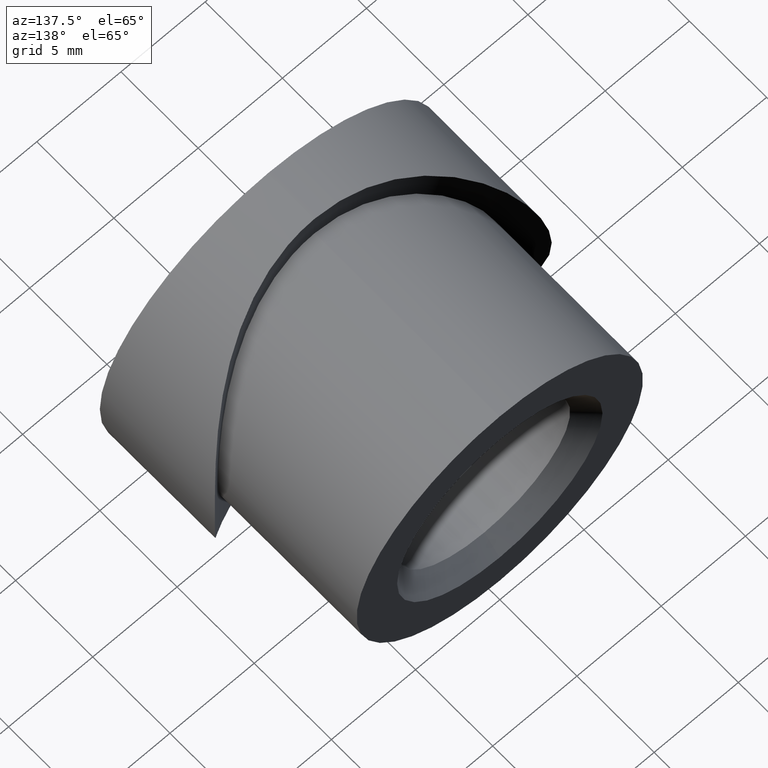
[diagram: clean part render]
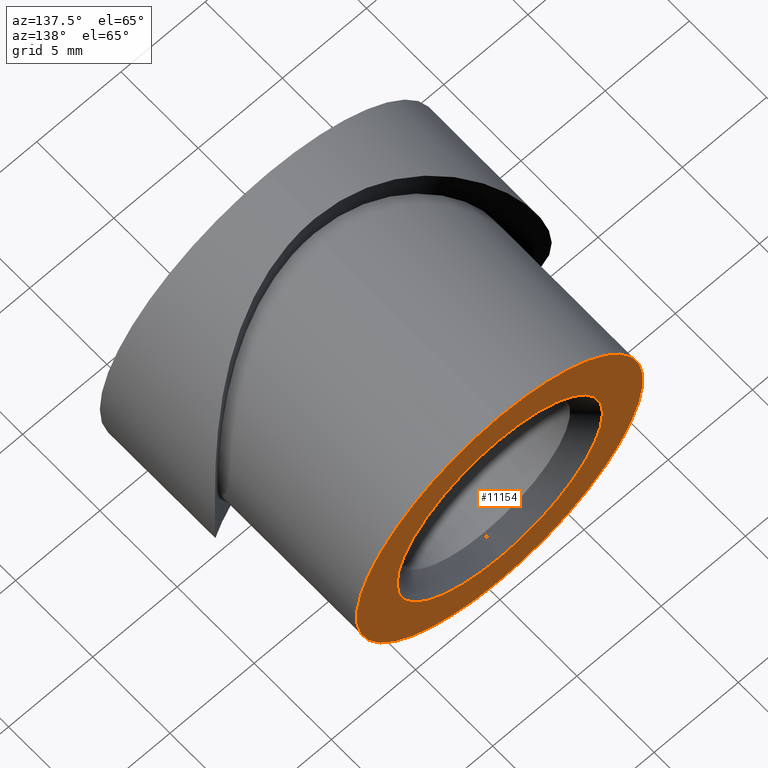
[diagram: same view with one face highlighted and labeled with its STEP entity id]
A machine part, auxiliary view. The second image highlights one B-rep face of the part: STEP entity #11154.
In plain terms, the highlighted planar face has unit normal (0, -1, 0).
Its self-contained STEP definition (entity closure, byte-faithful):
#194 = VERTEX_POINT ( 'NONE', #11381 ) ;
#238 = AXIS2_PLACEMENT_3D ( 'NONE', #13591, #4788, #3608 ) ;
#379 = EDGE_LOOP ( 'NONE', ( #6763, #1575 ) ) ;
#406 = EDGE_CURVE ( 'NONE', #10774, #6135, #9713, .T. ) ;
#409 = AXIS2_PLACEMENT_3D ( 'NONE', #8551, #9636, #10798 ) ;
#437 = CARTESIAN_POINT ( 'NONE',  ( 0.0000000000000000000, 15.00000000000000000, 0.0000000000000000000 ) ) ;
#451 = EDGE_CURVE ( 'NONE', #6973, #194, #5041, .T. ) ;
#1575 = ORIENTED_EDGE ( 'NONE', *, *, #8734, .F. ) ;
#1610 = CARTESIAN_POINT ( 'NONE',  ( 7.470345474798857300E-016, 15.00000000000000000, -6.100000000000001400 ) ) ;
#2941 = ORIENTED_EDGE ( 'NONE', *, *, #6657, .T. ) ;
#3131 = CARTESIAN_POINT ( 'NONE',  ( 0.0000000000000000000, 15.00000000000000000, 0.0000000000000000000 ) ) ;
#3518 = ORIENTED_EDGE ( 'NONE', *, *, #406, .T. ) ;
#3608 = DIRECTION ( 'NONE',  ( 0.0000000000000000000, 0.0000000000000000000, -1.000000000000000000 ) ) ;
#3744 = DIRECTION ( 'NONE',  ( 0.0000000000000000000, 0.0000000000000000000, -1.000000000000000000 ) ) ;
#3890 = DIRECTION ( 'NONE',  ( 0.0000000000000000000, 0.0000000000000000000, -1.000000000000000000 ) ) ;
#4788 = DIRECTION ( 'NONE',  ( 0.0000000000000000000, -1.000000000000000000, 0.0000000000000000000 ) ) ;
#4942 = CIRCLE ( 'NONE', #409, 6.100000000000001400 ) ;
#4980 = FACE_OUTER_BOUND ( 'NONE', #379, .T. ) ;
#5041 = CIRCLE ( 'NONE', #13233, 8.500000000000000000 ) ;
#5332 = DIRECTION ( 'NONE',  ( 0.0000000000000000000, -1.000000000000000000, 0.0000000000000000000 ) ) ;
#5364 = CARTESIAN_POINT ( 'NONE',  ( 0.0000000000000000000, 15.00000000000000000, 6.100000000000001400 ) ) ;
#5536 = AXIS2_PLACEMENT_3D ( 'NONE', #12560, #7116, #3744 ) ;
#5953 = DIRECTION ( 'NONE',  ( 0.0000000000000000000, -1.000000000000000000, 0.0000000000000000000 ) ) ;
#6135 = VERTEX_POINT ( 'NONE', #1610 ) ;
#6406 = DIRECTION ( 'NONE',  ( 0.0000000000000000000, -0.0000000000000000000, -1.000000000000000000 ) ) ;
#6657 = EDGE_CURVE ( 'NONE', #6135, #10774, #4942, .T. ) ;
#6736 = FACE_BOUND ( 'NONE', #7881, .T. ) ;
#6763 = ORIENTED_EDGE ( 'NONE', *, *, #451, .F. ) ;
#6973 = VERTEX_POINT ( 'NONE', #9373 ) ;
#7116 = DIRECTION ( 'NONE',  ( 0.0000000000000000000, -1.000000000000000000, 0.0000000000000000000 ) ) ;
#7881 = EDGE_LOOP ( 'NONE', ( #3518, #2941 ) ) ;
#8536 = PLANE ( 'NONE',  #8609 ) ;
#8551 = CARTESIAN_POINT ( 'NONE',  ( 0.0000000000000000000, 15.00000000000000000, 0.0000000000000000000 ) ) ;
#8609 = AXIS2_PLACEMENT_3D ( 'NONE', #3131, #5332, #6406 ) ;
#8734 = EDGE_CURVE ( 'NONE', #194, #6973, #12394, .T. ) ;
#9373 = CARTESIAN_POINT ( 'NONE',  ( 0.0000000000000000000, 15.00000000000000000, -8.500000000000000000 ) ) ;
#9636 = DIRECTION ( 'NONE',  ( 0.0000000000000000000, -1.000000000000000000, 0.0000000000000000000 ) ) ;
#9713 = CIRCLE ( 'NONE', #5536, 6.100000000000001400 ) ;
#10774 = VERTEX_POINT ( 'NONE', #5364 ) ;
#10798 = DIRECTION ( 'NONE',  ( 0.0000000000000000000, 0.0000000000000000000, -1.000000000000000000 ) ) ;
#11154 = ADVANCED_FACE ( 'NONE', ( #6736, #4980 ), #8536, .F. ) ;
#11381 = CARTESIAN_POINT ( 'NONE',  ( 1.040949779275250100E-015, 15.00000000000000000, 8.500000000000000000 ) ) ;
#12394 = CIRCLE ( 'NONE', #238, 8.500000000000000000 ) ;
#12560 = CARTESIAN_POINT ( 'NONE',  ( 0.0000000000000000000, 15.00000000000000000, 0.0000000000000000000 ) ) ;
#13233 = AXIS2_PLACEMENT_3D ( 'NONE', #437, #5953, #3890 ) ;
#13591 = CARTESIAN_POINT ( 'NONE',  ( 0.0000000000000000000, 15.00000000000000000, 0.0000000000000000000 ) ) ;